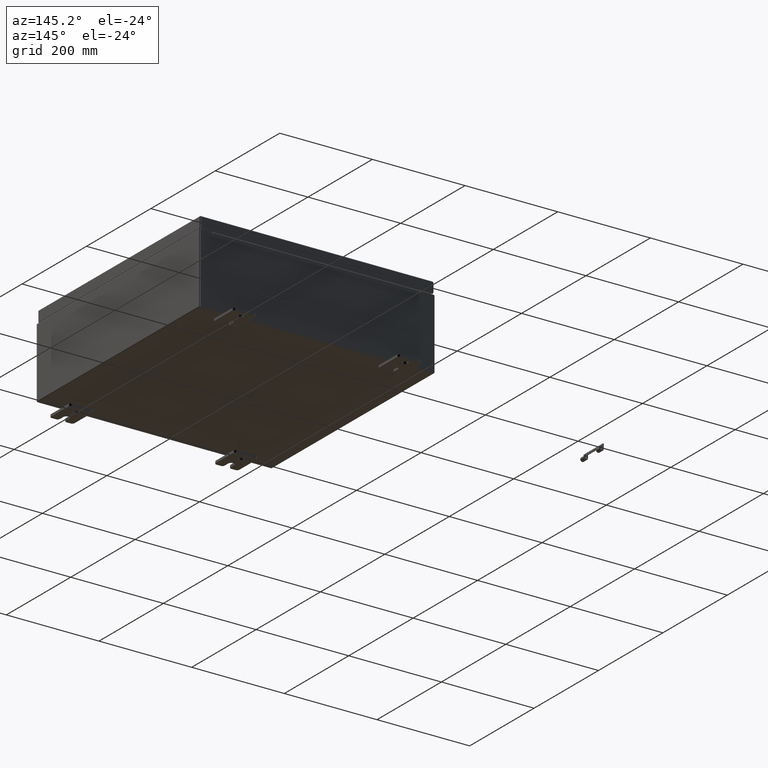
[diagram: clean part render]
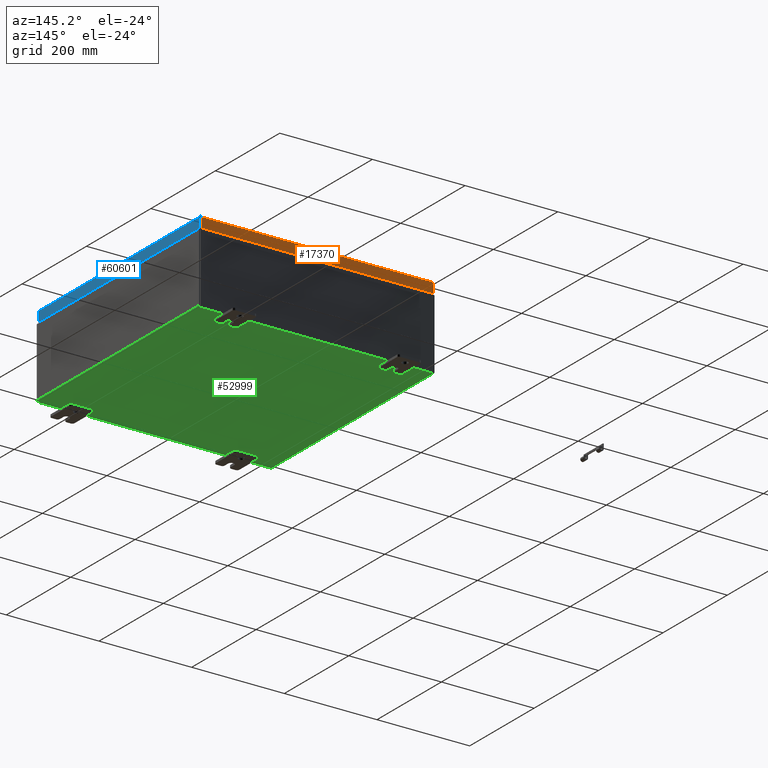
[diagram: same view with three faces highlighted in distinct colors, each labeled with its STEP entity id]
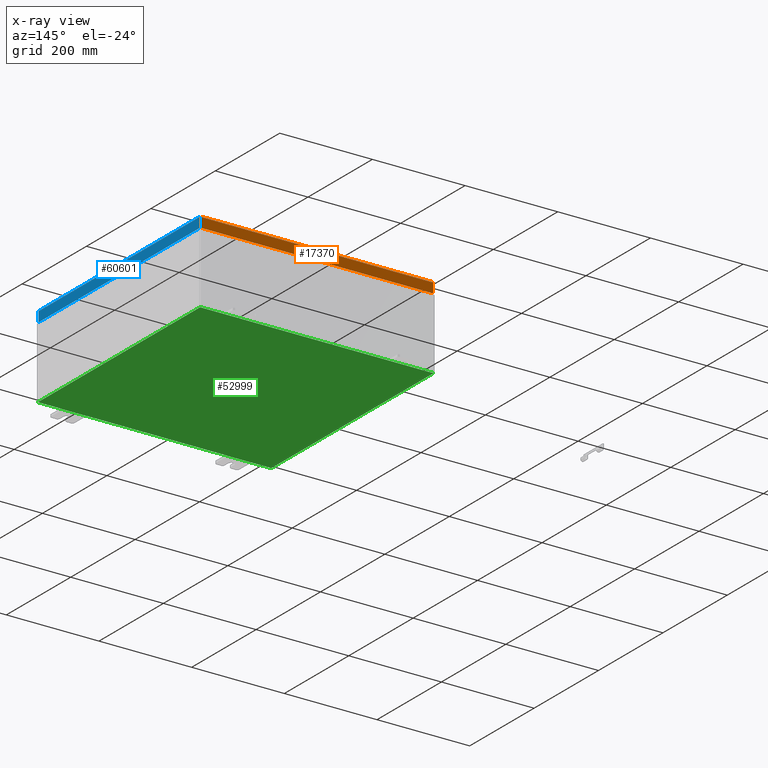
[diagram: x-ray of the same camera — body ghosted, the three highlighted faces saturated]
A machine part, auxiliary view with three faces highlighted in distinct colors.
The next image is the same camera in x-ray (body ghosted, the three faces saturated) — at least one of them is partly hidden behind the body in this view.
Their STEP definitions:

[orange] entity #17370 — the highlighted planar face has unit normal (0, -1, -0).
#475 = EDGE_CURVE ( 'NONE', #38035, #7339, #42068, .T. ) ;
#1285 = LINE ( 'NONE', #9933, #38924 ) ;
#4072 = VERTEX_POINT ( 'NONE', #50173 ) ;
#4980 = DIRECTION ( 'NONE',  ( 0.0000000000000000000, 2.532419924601859000E-015, -1.000000000000000000 ) ) ;
#7339 = VERTEX_POINT ( 'NONE', #30355 ) ;
#9933 = CARTESIAN_POINT ( 'NONE',  ( -9.937500000000000000, 9.937500000000000000, -0.9377000000000023100 ) ) ;
#11025 = EDGE_LOOP ( 'NONE', ( #26579, #15615, #63713, #26802 ) ) ;
#11718 = VECTOR ( 'NONE', #4980, 39.37007874015748100 ) ;
#12060 = DIRECTION ( 'NONE',  ( 0.0000000000000000000, 2.532419924601859000E-015, -1.000000000000000000 ) ) ;
#13394 = FACE_OUTER_BOUND ( 'NONE', #11025, .T. ) ;
#14606 = DIRECTION ( 'NONE',  ( 1.000000000000000000, -4.379057701015054300E-047, 1.237063242414006500E-016 ) ) ;
#15615 = ORIENTED_EDGE ( 'NONE', *, *, #51129, .T. ) ;
#17370 = ADVANCED_FACE ( 'NONE', ( #13394 ), #56123, .F. ) ;
#19947 = CARTESIAN_POINT ( 'NONE',  ( -9.848657864376269400, 9.937499999999998200, -0.07469999999999980800 ) ) ;
#21706 = CARTESIAN_POINT ( 'NONE',  ( -3.113183830562546900E-030, 9.937499999999998200, 2.542673665674255300E-014 ) ) ;
#26579 = ORIENTED_EDGE ( 'NONE', *, *, #34171, .F. ) ;
#26802 = ORIENTED_EDGE ( 'NONE', *, *, #475, .F. ) ;
#28168 = EDGE_CURVE ( 'NONE', #7339, #34396, #1285, .T. ) ;
#28753 = CARTESIAN_POINT ( 'NONE',  ( -9.848657864376265900, 9.937499999999998200, -0.08770000000000008300 ) ) ;
#30355 = CARTESIAN_POINT ( 'NONE',  ( -9.848657864376269400, 9.937500000000000000, -0.9377000000000023100 ) ) ;
#34171 = EDGE_CURVE ( 'NONE', #4072, #38035, #62256, .T. ) ;
#34396 = VERTEX_POINT ( 'NONE', #48440 ) ;
#37347 = AXIS2_PLACEMENT_3D ( 'NONE', #21706, #41519, #12060 ) ;
#37536 = DIRECTION ( 'NONE',  ( -1.000000000000000000, -3.132763603081809300E-031, -7.843572268217971900E-046 ) ) ;
#37931 = LINE ( 'NONE', #48987, #11718 ) ;
#38035 = VERTEX_POINT ( 'NONE', #28753 ) ;
#38924 = VECTOR ( 'NONE', #14606, 39.37007874015748100 ) ;
#41519 = DIRECTION ( 'NONE',  ( 3.132763603081808900E-031, -1.000000000000000000, -2.532419924601859000E-015 ) ) ;
#42068 = LINE ( 'NONE', #19947, #52069 ) ;
#47604 = VECTOR ( 'NONE', #37536, 39.37007874015748100 ) ;
#48440 = CARTESIAN_POINT ( 'NONE',  ( 9.848657864376265900, 9.937500000000000000, -0.9376999999999997600 ) ) ;
#48987 = CARTESIAN_POINT ( 'NONE',  ( 9.848657864376265900, 9.937499999999998200, 2.542673665674255300E-014 ) ) ;
#49849 = DIRECTION ( 'NONE',  ( -0.0000000000000000000, 2.532419924601859000E-015, -1.000000000000000000 ) ) ;
#50173 = CARTESIAN_POINT ( 'NONE',  ( 9.848657864376265900, 9.937499999999998200, -0.08770000000000008300 ) ) ;
#51129 = EDGE_CURVE ( 'NONE', #4072, #34396, #37931, .T. ) ;
#52069 = VECTOR ( 'NONE', #49849, 39.37007874015748100 ) ;
#56123 = PLANE ( 'NONE',  #37347 ) ;
#56402 = CARTESIAN_POINT ( 'NONE',  ( -9.937500000000000000, 9.937499999999998200, -0.08770000000000008300 ) ) ;
#62256 = LINE ( 'NONE', #56402, #47604 ) ;
#63713 = ORIENTED_EDGE ( 'NONE', *, *, #28168, .F. ) ;

[blue] entity #60601 — the highlighted planar face has unit normal (1, 0, 0).
#3155 = ORIENTED_EDGE ( 'NONE', *, *, #61630, .F. ) ;
#5358 = VECTOR ( 'NONE', #16268, 39.37007874015748100 ) ;
#9626 = CARTESIAN_POINT ( 'NONE',  ( 9.937499999999998200, 0.0000000000000000000, -0.08770000000000008300 ) ) ;
#10240 = PLANE ( 'NONE',  #14725 ) ;
#11698 = VECTOR ( 'NONE', #60351, 39.37007874015748100 ) ;
#14226 = ORIENTED_EDGE ( 'NONE', *, *, #24491, .T. ) ;
#14725 = AXIS2_PLACEMENT_3D ( 'NONE', #34747, #14927, #15150 ) ;
#14927 = DIRECTION ( 'NONE',  ( 1.000000000000000000, 0.0000000000000000000, 2.532419924601866100E-015 ) ) ;
#15150 = DIRECTION ( 'NONE',  ( 2.532419924601866100E-015, 0.0000000000000000000, -1.000000000000000000 ) ) ;
#16268 = DIRECTION ( 'NONE',  ( -2.532419924601866100E-015, -6.982962677686267500E-015, 1.000000000000000000 ) ) ;
#20403 = EDGE_LOOP ( 'NONE', ( #3155, #22438, #14226, #45111 ) ) ;
#20533 = VERTEX_POINT ( 'NONE', #29528 ) ;
#22438 = ORIENTED_EDGE ( 'NONE', *, *, #58435, .F. ) ;
#24491 = EDGE_CURVE ( 'NONE', #57461, #35393, #33017, .T. ) ;
#27564 = CARTESIAN_POINT ( 'NONE',  ( 9.937500000000000000, -9.937500000000001800, -0.9376999999999997600 ) ) ;
#29528 = CARTESIAN_POINT ( 'NONE',  ( 9.937499999999998200, -9.848657864376271200, -0.08770000000000008300 ) ) ;
#31683 = FACE_OUTER_BOUND ( 'NONE', #20403, .T. ) ;
#33017 = LINE ( 'NONE', #40796, #5358 ) ;
#33747 = CARTESIAN_POINT ( 'NONE',  ( 9.937500000000000000, -9.848657864376264100, -0.9376999999999997600 ) ) ;
#34747 = CARTESIAN_POINT ( 'NONE',  ( 9.937499999999998200, 0.0000000000000000000, 2.542673665674262200E-014 ) ) ;
#35393 = VERTEX_POINT ( 'NONE', #45479 ) ;
#37007 = CARTESIAN_POINT ( 'NONE',  ( 9.937500000000000000, 9.848657864376273000, -0.9376999999999997600 ) ) ;
#37905 = LINE ( 'NONE', #55384, #11698 ) ;
#38072 = VERTEX_POINT ( 'NONE', #33747 ) ;
#39078 = DIRECTION ( 'NONE',  ( 0.0000000000000000000, -1.000000000000000000, 0.0000000000000000000 ) ) ;
#40796 = CARTESIAN_POINT ( 'NONE',  ( 9.937499999999998200, 9.848657864376265900, 9.419954694898343600E-014 ) ) ;
#45111 = ORIENTED_EDGE ( 'NONE', *, *, #59455, .T. ) ;
#45479 = CARTESIAN_POINT ( 'NONE',  ( 9.937499999999998200, 9.848657864376269400, -0.08770000000000008300 ) ) ;
#49435 = VECTOR ( 'NONE', #39078, 39.37007874015748100 ) ;
#51035 = LINE ( 'NONE', #27564, #59515 ) ;
#55384 = CARTESIAN_POINT ( 'NONE',  ( 9.937499999999998200, -9.848657864376271200, -0.07469999999999980800 ) ) ;
#57461 = VERTEX_POINT ( 'NONE', #37007 ) ;
#58435 = EDGE_CURVE ( 'NONE', #57461, #38072, #51035, .T. ) ;
#59455 = EDGE_CURVE ( 'NONE', #35393, #20533, #62558, .T. ) ;
#59515 = VECTOR ( 'NONE', #61954, 39.37007874015748100 ) ;
#60351 = DIRECTION ( 'NONE',  ( -2.532419924601866100E-015, -6.982962677686267500E-015, 1.000000000000000000 ) ) ;
#60601 = ADVANCED_FACE ( 'NONE', ( #31683 ), #10240, .T. ) ;
#61630 = EDGE_CURVE ( 'NONE', #38072, #20533, #37905, .T. ) ;
#61954 = DIRECTION ( 'NONE',  ( 0.0000000000000000000, -1.000000000000000000, 0.0000000000000000000 ) ) ;
#62558 = LINE ( 'NONE', #9626, #49435 ) ;

[green] entity #52999 — the highlighted planar face has unit normal (0, 0, -1).
#429 = VERTEX_POINT ( 'NONE', #5620 ) ;
#751 = CARTESIAN_POINT ( 'NONE',  ( -10.00000000000000000, 9.925300000000001800, -0.07470000000000000300 ) ) ;
#795 = VECTOR ( 'NONE', #30317, 39.37007874015748100 ) ;
#3185 = DIRECTION ( 'NONE',  ( -0.0000000000000000000, 1.000000000000000000, -0.0000000000000000000 ) ) ;
#5190 = ORIENTED_EDGE ( 'NONE', *, *, #29304, .F. ) ;
#5620 = CARTESIAN_POINT ( 'NONE',  ( -9.912300000000000100, 9.925300000000001800, -0.07470000000000000300 ) ) ;
#6403 = LINE ( 'NONE', #25616, #30958 ) ;
#8065 = CARTESIAN_POINT ( 'NONE',  ( -9.912300000000000100, -9.925299999999998200, -0.07469999999999994700 ) ) ;
#8724 = CARTESIAN_POINT ( 'NONE',  ( 9.912300000000000100, -9.925299999999998200, -0.07470000000000000300 ) ) ;
#9637 = EDGE_CURVE ( 'NONE', #19738, #429, #23869, .T. ) ;
#9954 = ORIENTED_EDGE ( 'NONE', *, *, #9637, .T. ) ;
#14678 = FACE_OUTER_BOUND ( 'NONE', #56528, .T. ) ;
#17487 = DIRECTION ( 'NONE',  ( 0.0000000000000000000, 0.0000000000000000000, -1.000000000000000000 ) ) ;
#19078 = CARTESIAN_POINT ( 'NONE',  ( -9.912300000000000100, -9.925299999999996500, -0.07469999999999994700 ) ) ;
#19738 = VERTEX_POINT ( 'NONE', #19078 ) ;
#23460 = DIRECTION ( 'NONE',  ( 1.000000000000000000, 0.0000000000000000000, 0.0000000000000000000 ) ) ;
#23869 = LINE ( 'NONE', #8065, #48483 ) ;
#25616 = CARTESIAN_POINT ( 'NONE',  ( 9.912300000000000100, 9.925300000000001800, -0.07469999999999994700 ) ) ;
#26046 = AXIS2_PLACEMENT_3D ( 'NONE', #51673, #17487, #51882 ) ;
#28424 = CARTESIAN_POINT ( 'NONE',  ( -10.00000000000000000, -9.925299999999998200, -0.07470000000000000300 ) ) ;
#29304 = EDGE_CURVE ( 'NONE', #19738, #46719, #32707, .T. ) ;
#30317 = DIRECTION ( 'NONE',  ( -1.000000000000000000, -0.0000000000000000000, -0.0000000000000000000 ) ) ;
#30958 = VECTOR ( 'NONE', #35540, 39.37007874015748100 ) ;
#32707 = LINE ( 'NONE', #28424, #60383 ) ;
#35540 = DIRECTION ( 'NONE',  ( -0.0000000000000000000, -1.000000000000000000, -0.0000000000000000000 ) ) ;
#38444 = LINE ( 'NONE', #751, #795 ) ;
#41596 = ORIENTED_EDGE ( 'NONE', *, *, #57079, .F. ) ;
#41979 = PLANE ( 'NONE',  #26046 ) ;
#43516 = EDGE_CURVE ( 'NONE', #56034, #46719, #6403, .T. ) ;
#45480 = ORIENTED_EDGE ( 'NONE', *, *, #43516, .T. ) ;
#46719 = VERTEX_POINT ( 'NONE', #8724 ) ;
#46973 = CARTESIAN_POINT ( 'NONE',  ( 9.912300000000000100, 9.925300000000000000, -0.07469999999999994700 ) ) ;
#48483 = VECTOR ( 'NONE', #3185, 39.37007874015748100 ) ;
#51673 = CARTESIAN_POINT ( 'NONE',  ( 0.0000000000000000000, 0.0000000000000000000, -0.07470000000000000300 ) ) ;
#51882 = DIRECTION ( 'NONE',  ( -1.000000000000000000, 0.0000000000000000000, -0.0000000000000000000 ) ) ;
#52999 = ADVANCED_FACE ( 'NONE', ( #14678 ), #41979, .T. ) ;
#56034 = VERTEX_POINT ( 'NONE', #46973 ) ;
#56528 = EDGE_LOOP ( 'NONE', ( #5190, #9954, #41596, #45480 ) ) ;
#57079 = EDGE_CURVE ( 'NONE', #56034, #429, #38444, .T. ) ;
#60383 = VECTOR ( 'NONE', #23460, 39.37007874015748100 ) ;